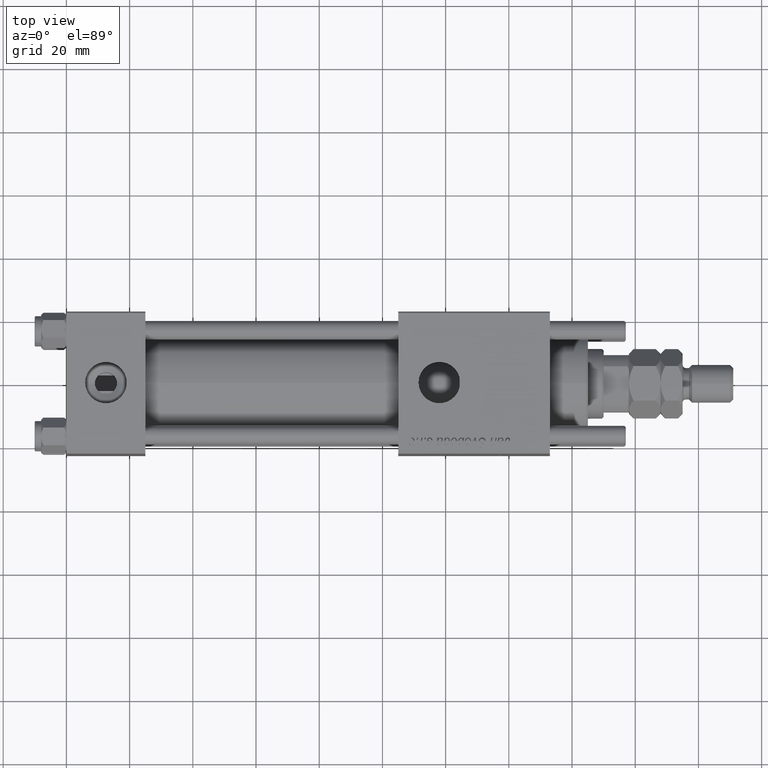
[diagram: clean part render]
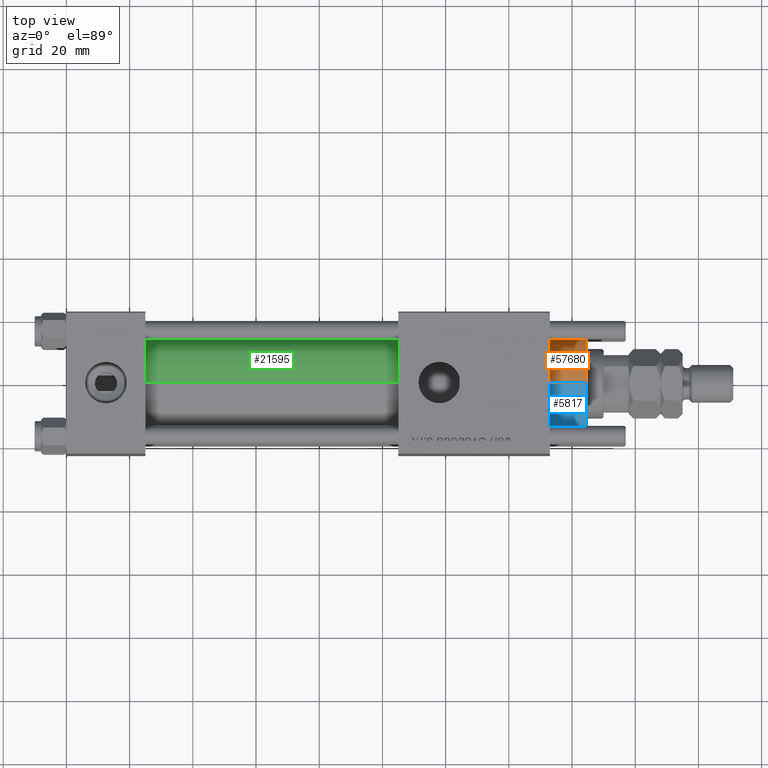
[diagram: same view with three faces highlighted in distinct colors, each labeled with its STEP entity id]
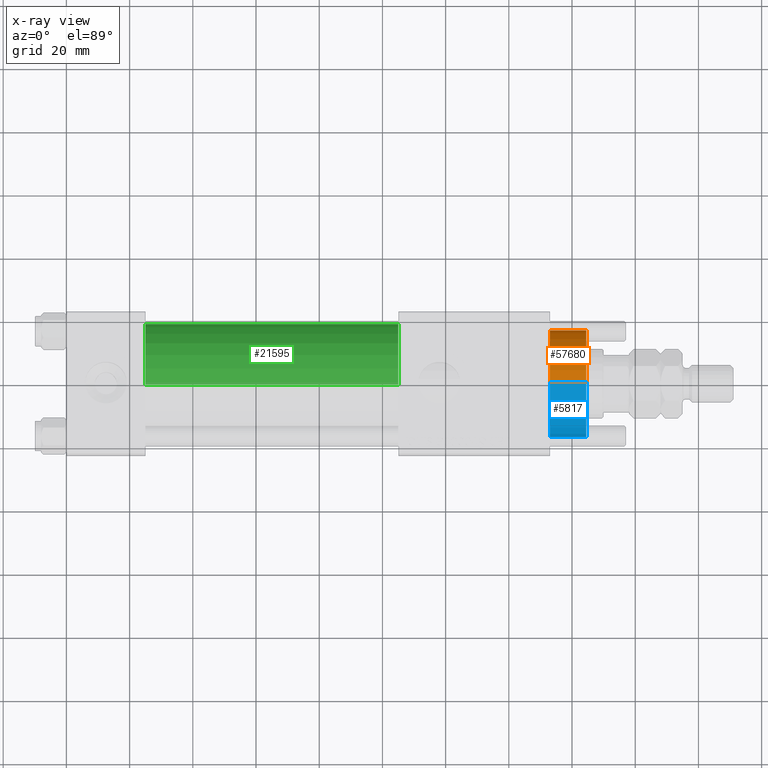
[diagram: x-ray of the same camera — body ghosted, the three highlighted faces saturated]
A machine part, top view with three faces highlighted in distinct colors.
The next image is the same camera in x-ray (body ghosted, the three faces saturated) — at least one of them is partly hidden behind the body in this view.
Their STEP definitions:

[orange] entity #57680 — the highlighted cylindrical surface (partial cylindrical patch) has radius 17 mm, axis along (-1, -0, 0).
#2433 = VECTOR ( 'NONE', #21902, 1000.000000000000000 ) ;
#3329 = VERTEX_POINT ( 'NONE', #47584 ) ;
#4961 = LINE ( 'NONE', #9854, #22776 ) ;
#8182 = DIRECTION ( 'NONE',  ( 0.000000000000000000, 0.000000000000000000, 1.000000000000000000 ) ) ;
#8359 = DIRECTION ( 'NONE',  ( 0.000000000000000000, 0.000000000000000000, -1.000000000000000000 ) ) ;
#9854 = CARTESIAN_POINT ( 'NONE',  ( 17.00000000000000000, 2.081899558550500280E-15, 40.70000000000000284 ) ) ;
#10462 = DIRECTION ( 'NONE',  ( -0.000000000000000000, -0.000000000000000000, -1.000000000000000000 ) ) ;
#13386 = CARTESIAN_POINT ( 'NONE',  ( 0.000000000000000000, 0.000000000000000000, 28.69999999999999929 ) ) ;
#14528 = VERTEX_POINT ( 'NONE', #44288 ) ;
#18922 = ORIENTED_EDGE ( 'NONE', *, *, #32229, .T. ) ;
#21902 = DIRECTION ( 'NONE',  ( -0.000000000000000000, -0.000000000000000000, -1.000000000000000000 ) ) ;
#22242 = DIRECTION ( 'NONE',  ( -1.000000000000000000, 0.000000000000000000, 0.000000000000000000 ) ) ;
#22776 = VECTOR ( 'NONE', #10462, 1000.000000000000000 ) ;
#24769 = CARTESIAN_POINT ( 'NONE',  ( 17.00000000000000000, 2.081899558550500280E-15, 28.69999999999999929 ) ) ;
#26129 = VERTEX_POINT ( 'NONE', #39498 ) ;
#26246 = DIRECTION ( 'NONE',  ( -0.000000000000000000, -0.000000000000000000, -1.000000000000000000 ) ) ;
#27422 = DIRECTION ( 'NONE',  ( 1.000000000000000000, 0.000000000000000000, 0.000000000000000000 ) ) ;
#28969 = AXIS2_PLACEMENT_3D ( 'NONE', #13386, #8182, #27422 ) ;
#31067 = AXIS2_PLACEMENT_3D ( 'NONE', #32814, #8359, #36173 ) ;
#31237 = ORIENTED_EDGE ( 'NONE', *, *, #35657, .T. ) ;
#31427 = FACE_OUTER_BOUND ( 'NONE', #37863, .T. ) ;
#32229 = EDGE_CURVE ( 'NONE', #43739, #14528, #56211, .T. ) ;
#32814 = CARTESIAN_POINT ( 'NONE',  ( 0.000000000000000000, 0.000000000000000000, 40.19999999999999574 ) ) ;
#35424 = CARTESIAN_POINT ( 'NONE',  ( 0.000000000000000000, 0.000000000000000000, 40.70000000000000284 ) ) ;
#35657 = EDGE_CURVE ( 'NONE', #3329, #43739, #4961, .T. ) ;
#36173 = DIRECTION ( 'NONE',  ( 1.000000000000000000, 0.000000000000000000, 0.000000000000000000 ) ) ;
#37863 = EDGE_LOOP ( 'NONE', ( #48717, #31237, #18922, #41806 ) ) ;
#39498 = CARTESIAN_POINT ( 'NONE',  ( -17.00000000000000000, 0.000000000000000000, 40.19999999999999574 ) ) ;
#39692 = EDGE_CURVE ( 'NONE', #26129, #14528, #45155, .T. ) ;
#41806 = ORIENTED_EDGE ( 'NONE', *, *, #39692, .F. ) ;
#43739 = VERTEX_POINT ( 'NONE', #24769 ) ;
#44288 = CARTESIAN_POINT ( 'NONE',  ( -17.00000000000000000, 0.000000000000000000, 28.69999999999999929 ) ) ;
#44867 = CARTESIAN_POINT ( 'NONE',  ( -17.00000000000000000, 0.000000000000000000, 40.70000000000000284 ) ) ;
#45155 = LINE ( 'NONE', #44867, #2433 ) ;
#47584 = CARTESIAN_POINT ( 'NONE',  ( 17.00000000000000000, 2.081899558550500280E-15, 40.19999999999999574 ) ) ;
#48717 = ORIENTED_EDGE ( 'NONE', *, *, #58236, .T. ) ;
#56211 = CIRCLE ( 'NONE', #28969, 17.00000000000000000 ) ;
#56400 = AXIS2_PLACEMENT_3D ( 'NONE', #35424, #26246, #22242 ) ;
#56444 = CIRCLE ( 'NONE', #31067, 17.00000000000000000 ) ;
#57680 = ADVANCED_FACE ( 'NONE', ( #31427 ), #58930, .T. ) ;
#58236 = EDGE_CURVE ( 'NONE', #26129, #3329, #56444, .T. ) ;
#58930 = CYLINDRICAL_SURFACE ( 'NONE', #56400, 17.00000000000000000 ) ;

[blue] entity #5817 — the highlighted cylindrical surface (partial cylindrical patch) has radius 17 mm, axis along (-1, -0, 0).
#1379 = DIRECTION ( 'NONE',  ( -0.000000000000000000, -0.000000000000000000, -1.000000000000000000 ) ) ;
#1681 = FACE_OUTER_BOUND ( 'NONE', #53754, .T. ) ;
#2433 = VECTOR ( 'NONE', #21902, 1000.000000000000000 ) ;
#3323 = DIRECTION ( 'NONE',  ( 0.000000000000000000, 0.000000000000000000, 1.000000000000000000 ) ) ;
#3329 = VERTEX_POINT ( 'NONE', #47584 ) ;
#3500 = AXIS2_PLACEMENT_3D ( 'NONE', #21356, #3323, #59819 ) ;
#4246 = DIRECTION ( 'NONE',  ( 0.000000000000000000, 0.000000000000000000, -1.000000000000000000 ) ) ;
#4961 = LINE ( 'NONE', #9854, #22776 ) ;
#5817 = ADVANCED_FACE ( 'NONE', ( #1681 ), #19710, .T. ) ;
#9854 = CARTESIAN_POINT ( 'NONE',  ( 17.00000000000000000, 2.081899558550500280E-15, 40.70000000000000284 ) ) ;
#10462 = DIRECTION ( 'NONE',  ( -0.000000000000000000, -0.000000000000000000, -1.000000000000000000 ) ) ;
#14528 = VERTEX_POINT ( 'NONE', #44288 ) ;
#16521 = AXIS2_PLACEMENT_3D ( 'NONE', #28896, #1379, #47244 ) ;
#19710 = CYLINDRICAL_SURFACE ( 'NONE', #16521, 17.00000000000000000 ) ;
#21356 = CARTESIAN_POINT ( 'NONE',  ( 0.000000000000000000, 0.000000000000000000, 28.69999999999999929 ) ) ;
#21902 = DIRECTION ( 'NONE',  ( -0.000000000000000000, -0.000000000000000000, -1.000000000000000000 ) ) ;
#22776 = VECTOR ( 'NONE', #10462, 1000.000000000000000 ) ;
#24769 = CARTESIAN_POINT ( 'NONE',  ( 17.00000000000000000, 2.081899558550500280E-15, 28.69999999999999929 ) ) ;
#26129 = VERTEX_POINT ( 'NONE', #39498 ) ;
#28896 = CARTESIAN_POINT ( 'NONE',  ( 0.000000000000000000, 0.000000000000000000, 40.70000000000000284 ) ) ;
#30255 = ORIENTED_EDGE ( 'NONE', *, *, #47220, .T. ) ;
#35657 = EDGE_CURVE ( 'NONE', #3329, #43739, #4961, .T. ) ;
#39498 = CARTESIAN_POINT ( 'NONE',  ( -17.00000000000000000, 0.000000000000000000, 40.19999999999999574 ) ) ;
#39692 = EDGE_CURVE ( 'NONE', #26129, #14528, #45155, .T. ) ;
#43739 = VERTEX_POINT ( 'NONE', #24769 ) ;
#44288 = CARTESIAN_POINT ( 'NONE',  ( -17.00000000000000000, 0.000000000000000000, 28.69999999999999929 ) ) ;
#44867 = CARTESIAN_POINT ( 'NONE',  ( -17.00000000000000000, 0.000000000000000000, 40.70000000000000284 ) ) ;
#45155 = LINE ( 'NONE', #44867, #2433 ) ;
#45704 = ORIENTED_EDGE ( 'NONE', *, *, #35657, .F. ) ;
#46712 = AXIS2_PLACEMENT_3D ( 'NONE', #55567, #4246, #54954 ) ;
#47220 = EDGE_CURVE ( 'NONE', #14528, #43739, #57206, .T. ) ;
#47244 = DIRECTION ( 'NONE',  ( -1.000000000000000000, 0.000000000000000000, 0.000000000000000000 ) ) ;
#47584 = CARTESIAN_POINT ( 'NONE',  ( 17.00000000000000000, 2.081899558550500280E-15, 40.19999999999999574 ) ) ;
#49064 = ORIENTED_EDGE ( 'NONE', *, *, #52909, .T. ) ;
#51236 = ORIENTED_EDGE ( 'NONE', *, *, #39692, .T. ) ;
#52909 = EDGE_CURVE ( 'NONE', #3329, #26129, #55434, .T. ) ;
#53754 = EDGE_LOOP ( 'NONE', ( #45704, #49064, #51236, #30255 ) ) ;
#54954 = DIRECTION ( 'NONE',  ( 1.000000000000000000, 0.000000000000000000, 0.000000000000000000 ) ) ;
#55434 = CIRCLE ( 'NONE', #46712, 17.00000000000000000 ) ;
#55567 = CARTESIAN_POINT ( 'NONE',  ( 0.000000000000000000, 0.000000000000000000, 40.19999999999999574 ) ) ;
#57206 = CIRCLE ( 'NONE', #3500, 17.00000000000000000 ) ;
#59819 = DIRECTION ( 'NONE',  ( 1.000000000000000000, 0.000000000000000000, 0.000000000000000000 ) ) ;

[green] entity #21595 — the highlighted cylindrical surface (partial cylindrical patch) has radius 19 mm, axis along (-1, -0, -0).
#1728 = EDGE_CURVE ( 'NONE', #16144, #6364, #39949, .T. ) ;
#3209 = CYLINDRICAL_SURFACE ( 'NONE', #24692, 19.00000000000000000 ) ;
#3870 = LINE ( 'NONE', #32285, #45908 ) ;
#4794 = ORIENTED_EDGE ( 'NONE', *, *, #10234, .F. ) ;
#5075 = AXIS2_PLACEMENT_3D ( 'NONE', #48017, #14724, #33360 ) ;
#6364 = VERTEX_POINT ( 'NONE', #16465 ) ;
#9824 = ORIENTED_EDGE ( 'NONE', *, *, #49530, .T. ) ;
#10234 = EDGE_CURVE ( 'NONE', #58408, #6364, #3870, .T. ) ;
#13593 = AXIS2_PLACEMENT_3D ( 'NONE', #40118, #44704, #45589 ) ;
#14371 = EDGE_CURVE ( 'NONE', #27931, #58408, #55779, .T. ) ;
#14724 = DIRECTION ( 'NONE',  ( 1.000000000000000000, 0.000000000000000000, 0.000000000000000000 ) ) ;
#16144 = VERTEX_POINT ( 'NONE', #20821 ) ;
#16465 = CARTESIAN_POINT ( 'NONE',  ( 24.99999999999999289, -2.602085213965210642E-15, 19.00000000000000000 ) ) ;
#20821 = CARTESIAN_POINT ( 'NONE',  ( 24.99999999999999289, -2.752562955852396712E-16, -19.00000000000000000 ) ) ;
#21595 = ADVANCED_FACE ( 'NONE', ( #45095 ), #3209, .T. ) ;
#24692 = AXIS2_PLACEMENT_3D ( 'NONE', #31326, #49954, #26724 ) ;
#24886 = CARTESIAN_POINT ( 'NONE',  ( 105.0000000000000142, -2.752562955852396712E-16, -19.00000000000000000 ) ) ;
#26724 = DIRECTION ( 'NONE',  ( 0.000000000000000000, 0.000000000000000000, 1.000000000000000000 ) ) ;
#26823 = CARTESIAN_POINT ( 'NONE',  ( 105.0000000000000142, -2.752562955852396712E-16, -19.00000000000000000 ) ) ;
#26954 = ORIENTED_EDGE ( 'NONE', *, *, #1728, .T. ) ;
#27931 = VERTEX_POINT ( 'NONE', #26823 ) ;
#28828 = CARTESIAN_POINT ( 'NONE',  ( 105.0000000000000142, -2.602085213965210642E-15, 19.00000000000000000 ) ) ;
#31326 = CARTESIAN_POINT ( 'NONE',  ( 105.0000000000000142, -2.602085213965210642E-15, 0.000000000000000000 ) ) ;
#32285 = CARTESIAN_POINT ( 'NONE',  ( 105.0000000000000142, -2.602085213965210642E-15, 19.00000000000000000 ) ) ;
#33360 = DIRECTION ( 'NONE',  ( 0.000000000000000000, 0.000000000000000000, -1.000000000000000000 ) ) ;
#38346 = DIRECTION ( 'NONE',  ( -1.000000000000000000, -0.000000000000000000, -0.000000000000000000 ) ) ;
#39949 = CIRCLE ( 'NONE', #13593, 19.00000000000000000 ) ;
#40118 = CARTESIAN_POINT ( 'NONE',  ( 24.99999999999999289, -2.602085213965210642E-15, 0.000000000000000000 ) ) ;
#42040 = ORIENTED_EDGE ( 'NONE', *, *, #14371, .F. ) ;
#44704 = DIRECTION ( 'NONE',  ( 1.000000000000000000, -0.000000000000000000, 0.000000000000000000 ) ) ;
#45095 = FACE_OUTER_BOUND ( 'NONE', #59708, .T. ) ;
#45589 = DIRECTION ( 'NONE',  ( 0.000000000000000000, 0.000000000000000000, 1.000000000000000000 ) ) ;
#45908 = VECTOR ( 'NONE', #59767, 1000.000000000000000 ) ;
#48017 = CARTESIAN_POINT ( 'NONE',  ( 105.0000000000000142, -2.602085213965210642E-15, 0.000000000000000000 ) ) ;
#49530 = EDGE_CURVE ( 'NONE', #27931, #16144, #52385, .T. ) ;
#49954 = DIRECTION ( 'NONE',  ( -1.000000000000000000, -0.000000000000000000, -0.000000000000000000 ) ) ;
#52385 = LINE ( 'NONE', #24886, #53357 ) ;
#53357 = VECTOR ( 'NONE', #38346, 1000.000000000000000 ) ;
#55779 = CIRCLE ( 'NONE', #5075, 19.00000000000000000 ) ;
#58408 = VERTEX_POINT ( 'NONE', #28828 ) ;
#59708 = EDGE_LOOP ( 'NONE', ( #42040, #9824, #26954, #4794 ) ) ;
#59767 = DIRECTION ( 'NONE',  ( -1.000000000000000000, -0.000000000000000000, -0.000000000000000000 ) ) ;